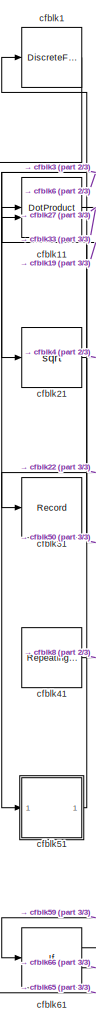
[diagram: root canvas - part 1/3, left side, full height]
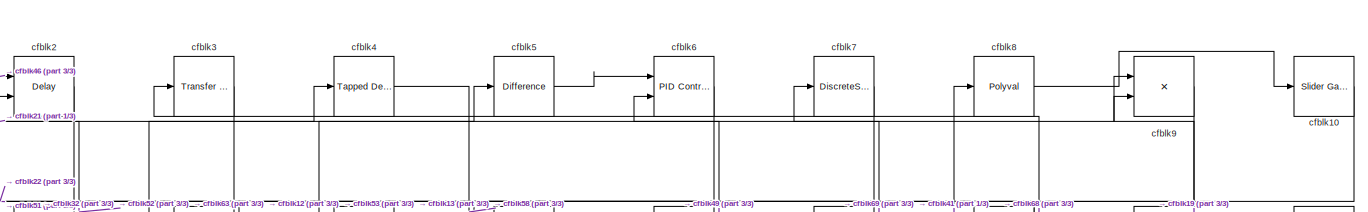
[diagram: root canvas - part 2/3, full width, top band]
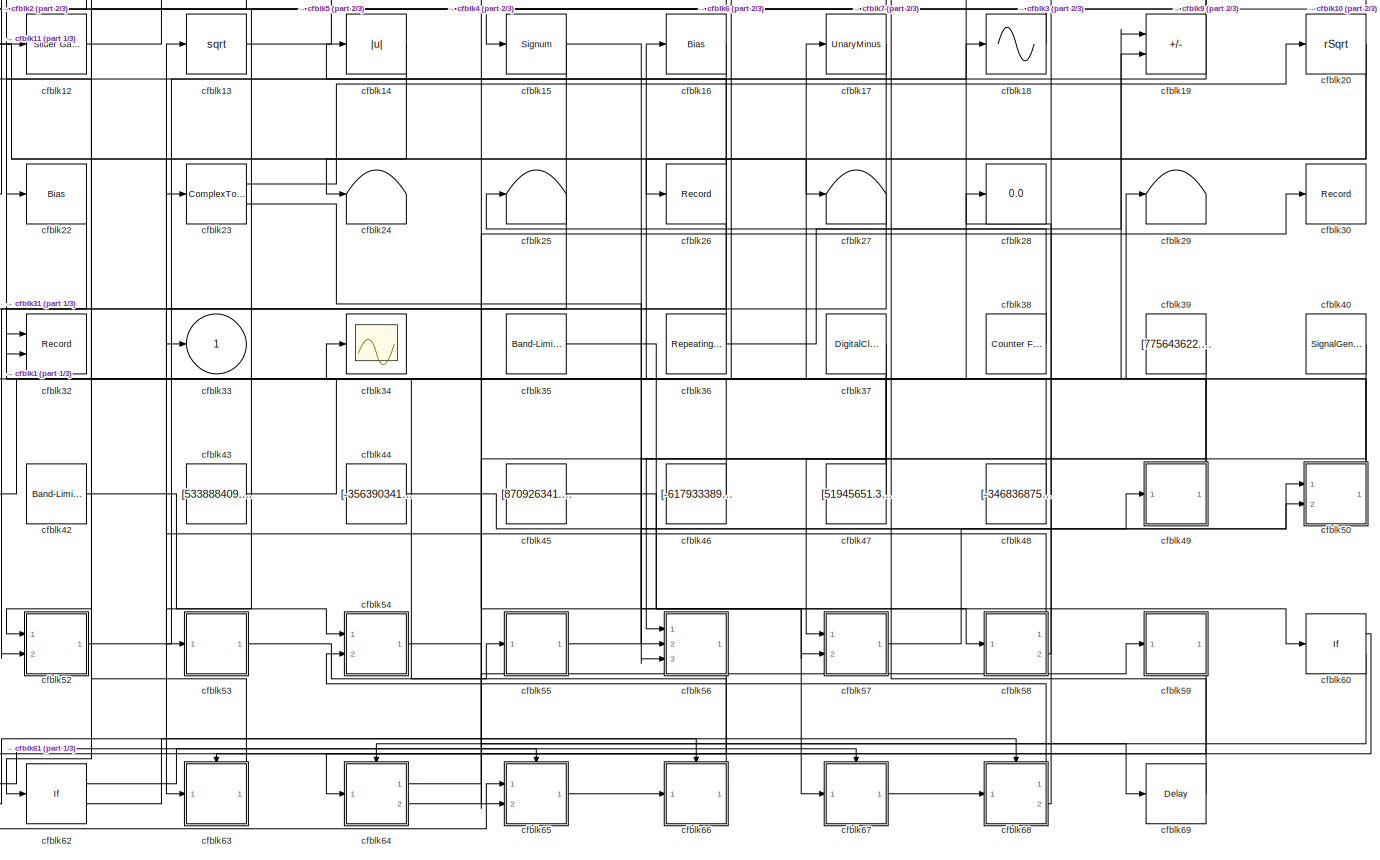
[diagram: root canvas - part 3/3, most of the canvas]
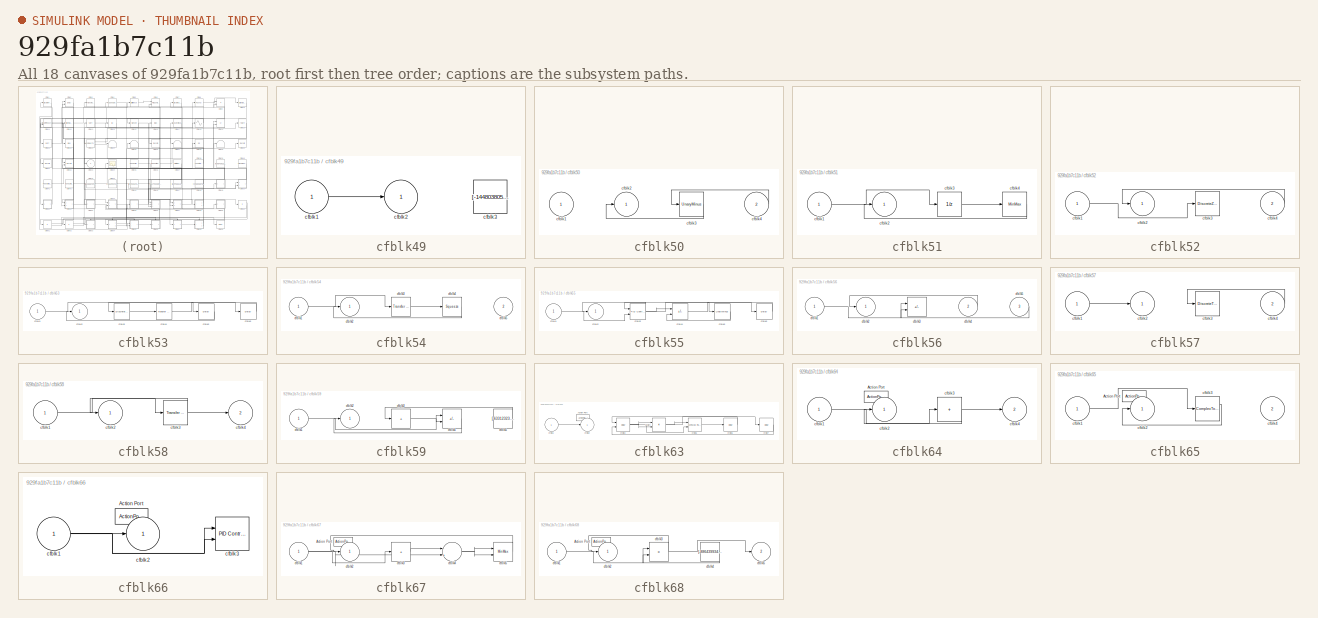
[diagram: thumbnail index - all 18 canvases of the model, root first then tree order]
MODEL slx_929fa1b7c11b
KIND model
CONFIG AbsTol = auto
CONFIG EnableMultiTasking = off
CONFIG FixedStep = auto
CONFIG MaxStep = auto
CONFIG MinStep = auto
CONFIG RelTol = 1e-3
CONFIG SampleTimeConstraint = Unconstrained
CONFIG SolverName = VariableStepAuto
CONFIG StartTime = 0.0
CONFIG StopTime = 10.0
BLOCK [DiscreteFilter] cfblk1
  InputPortMap = u0
  Ports = [1, 1]
  SampleTime = 1
BLOCK [Reference] cfblk10  REF=simulink/Math
Operations/Slider
Gain
  Ports = [1, 1]
  SourceBlock = simulink/Math\nOperations/Slider\nGain
  SourceProductBaseCode = SL
  SourceType = Slider Gain
BLOCK [DotProduct] cfblk11
  OutDataTypeStr = Inherit: Inherit via internal rule
BLOCK [Reference] cfblk12  REF=simulink/Math
Operations/Slider
Gain
  Ports = [1, 1]
  SourceBlock = simulink/Math\nOperations/Slider\nGain
  SourceProductBaseCode = SL
  SourceType = Slider Gain
BLOCK [Sqrt] cfblk13
BLOCK [Abs] cfblk14
  SaturateOnIntegerOverflow = off
BLOCK [Signum] cfblk15
BLOCK [Bias] cfblk16
  Bias = [-278197166.341707]
  SaturateOnIntegerOverflow = off
BLOCK [UnaryMinus] cfblk17
BLOCK [Sin] cfblk18
  Ports = [1, 1]
  SampleTime = 0
  TimeSource = Use external signal
BLOCK [Sum] cfblk19
  IconShape = rectangular
  Inputs = +-
  Ports = [2, 1]
BLOCK [Delay] cfblk2
  DelayLengthSource = Input port
  InputPortMap = u0,p1
  Ports = [2, 1]
  SampleTime = 1
BLOCK [Sqrt] cfblk20
  AlgorithmType = Newton-Raphson
  Operator = rSqrt
BLOCK [Sqrt] cfblk21
BLOCK [Bias] cfblk22
  Bias = [62135621.945633]
  SaturateOnIntegerOverflow = off
BLOCK [ComplexToMagnitudeAngle] cfblk23
  Ports = [1, 2]
BLOCK [Terminator] cfblk24
BLOCK [Terminator] cfblk25
BLOCK [Record] cfblk26
  FileSettingsInternal = {"entries":[{"content":{"excelSettings":{"content":{},"type":"Streamout.ExcelSettings"}},"type":"Streamout.FileSettingStorage","uuid":"be86e523-b2b8-4dfb-90bd-9b9dff0a1b6b"}],"packageUris":["http://schema.mathworks.com/mf0/streamout_blocks/R2020a"],"version":"1.0"}
  Ports = [1]
  SignalsInternal = {"entries":[{"content":{"signals":[{"content":{"blockPath":["sampleModel178/cfblk26"],"channel":[],"dimensions":[1],"domain":"sampleModel178/cfblk26","lineColor":"#77ac30","plots":[1],"port":1,"sid":[""],"signalID":6645,"signalName":"cfblk20"},"type":"RecordBlkView.Signal","uuid":"4b144584-9a43-47f2-a69c-50df024e1d48"}]},"type":"RecordBlkView.InputSignals","uuid":"c2cdda2f-7ac4-44a8-bfad-3bf684062...<+97ch>
  VisualizationBindings = {"sparklinesplugin":{"info":[{"bindingParametersList":[],"subplotID":1}]}}
BLOCK [Terminator] cfblk27
BLOCK [Display] cfblk28
  Decimation = 1
  Ports = [1]
BLOCK [Terminator] cfblk29
BLOCK [Reference] cfblk3  REF=simulink/Discrete/Transfer Fcn
First Order
  Ports = [1, 1]
  SourceBlock = simulink/Discrete/Transfer Fcn\nFirst Order
  SourceProductBaseCode = SL
  SourceType = First Order Transfer Fcn
BLOCK [Record] cfblk30
  FileSettingsInternal = {"entries":[{"content":{"excelSettings":{"content":{},"type":"Streamout.ExcelSettings"}},"type":"Streamout.FileSettingStorage","uuid":"76fbbe46-222a-41bd-be4c-6d09f312d211"}],"packageUris":["http://schema.mathworks.com/mf0/streamout_blocks/R2020a"],"version":"1.0"}
  Ports = [1]
  SignalsInternal = {"entries":[{"content":{"signals":[{"content":{"blockPath":["sampleModel178/cfblk30"],"channel":[],"dimensions":[1],"domain":"sampleModel178/cfblk30","lineColor":"#4dbeee","plots":[1],"port":1,"sid":[""],"signalID":6649,"signalName":"cfblk64:1"},"type":"RecordBlkView.Signal","uuid":"a4327d1c-5bc7-461e-8e24-29cee5ef2460"}]},"type":"RecordBlkView.InputSignals","uuid":"425877e9-1772-4313-824c-f102d4e...<+99ch>
  VisualizationBindings = {"sparklinesplugin":{"info":[{"bindingParametersList":[],"subplotID":1}]}}
BLOCK [Record] cfblk31
  FileSettingsInternal = {"entries":[{"content":{"excelSettings":{"content":{},"type":"Streamout.ExcelSettings"}},"type":"Streamout.FileSettingStorage","uuid":"43346c29-def4-4f2f-8f64-df488cf16ed7"}],"packageUris":["http://schema.mathworks.com/mf0/streamout_blocks/R2020a"],"version":"1.0"}
  Ports = [1]
  SignalsInternal = {"entries":[{"content":{"signals":[{"content":{"blockPath":["sampleModel178/cfblk31"],"channel":[],"dimensions":[1],"domain":"sampleModel178/cfblk31","lineColor":"#a2142f","plots":[1],"port":1,"sid":[""],"signalID":6653,"signalName":"cfblk22"},"type":"RecordBlkView.Signal","uuid":"eade383c-6a7d-4619-a6c9-563d680494e4"}]},"type":"RecordBlkView.InputSignals","uuid":"b48412cb-0ebc-488a-b739-6a3fe6c8a...<+97ch>
  VisualizationBindings = {"sparklinesplugin":{"info":[{"bindingParametersList":[],"subplotID":1}]}}
BLOCK [Record] cfblk32
  CompatibilityTag = XY
  FileSettingsInternal = {"entries":[{"content":{"excelSettings":{"content":{},"type":"Streamout.ExcelSettings"}},"type":"Streamout.FileSettingStorage","uuid":"be8da1fe-501e-4a30-a5ae-be33373d3ee8"}],"packageUris":["http://schema.mathworks.com/mf0/streamout_blocks/R2020a"],"version":"1.0"}
  Layout = [1 1]
  Ports = [2]
  SignalsInternal = {"entries":[{"content":{"signals":[{"content":{"blockPath":["sampleModel178/cfblk32"],"channel":[],"dimensions":[1],"domain":"sampleModel178/cfblk32","lineColor":"#a2142f","plots":[1],"port":1,"sid":[""],"signalID":6657,"signalName":"cfblk9"},"type":"RecordBlkView.Signal","uuid":"e1dc123e-5398-497d-ac3b-f2aa685ca0a2"},{"content":{"blockPath":["sampleModel178/cfblk32"],"channel":[],"dimensions":[1]...<+382ch>
  VisualizationBindings = {"xyplotplugin":{"info":[{"series":[{"bindingParametersList":[{"parameter":"X-Axis","signalID":6657,"signalName":"cfblk9"},{"parameter":"Y-Axis","signalID":6661,"signalName":"cfblk47"}],"seriesID":20501}],"subplotID":1}]}}
BLOCK [Outport] cfblk33
BLOCK [Scope] cfblk34
  Floating = off
  NumInputPorts = 1
  Ports = [1]
BLOCK [Reference] cfblk35  REF=simulink/Sources/Band-Limited
White Noise
  Ports = [0, 1]
  SourceBlock = simulink/Sources/Band-Limited\nWhite Noise
  SourceProductBaseCode = SL
  SourceType = Band-Limited White Noise.
BLOCK [Reference] cfblk36  REF=simulink/Sources/Repeating
Sequence
Stair
  Ports = [0, 1]
  SourceBlock = simulink/Sources/Repeating\nSequence\nStair
  SourceProductBaseCode = SL
  SourceType = Repeating Sequence Stair
BLOCK [DigitalClock] cfblk37
BLOCK [Reference] cfblk38  REF=simulink/Sources/Counter
Free-Running
  Ports = [0, 1]
  SourceBlock = simulink/Sources/Counter\nFree-Running
  SourceProductBaseCode = SL
  SourceType = Counter Free-Running
BLOCK [Constant] cfblk39
  SampleTime = 1
  Value = [775643622.889487]
BLOCK [Reference] cfblk4  REF=simulink/Discrete/Tapped Delay
  Ports = [1, 1]
  SourceBlock = simulink/Discrete/Tapped Delay
  SourceProductBaseCode = SL
  SourceType = Tapped Delay Line
BLOCK [SignalGenerator] cfblk40
  Amplitude = [573332357.813821]
  Ports = [0, 1]
BLOCK [Reference] cfblk41  REF=simulink/Sources/Repeating
Sequence
  Ports = [0, 1]
  SourceBlock = simulink/Sources/Repeating\nSequence
  SourceProductBaseCode = SL
  SourceType = Repeating table
BLOCK [Reference] cfblk42  REF=simulink/Sources/Band-Limited
White Noise
  Ports = [0, 1]
  SourceBlock = simulink/Sources/Band-Limited\nWhite Noise
  SourceProductBaseCode = SL
  SourceType = Band-Limited White Noise.
BLOCK [Constant] cfblk43
  SampleTime = 1
  Value = [533888409.552165]
BLOCK [Constant] cfblk44
  SampleTime = 1
  Value = [-356390341.526028]
BLOCK [Constant] cfblk45
  SampleTime = 1
  Value = [870926341.101236]
BLOCK [Constant] cfblk46
  SampleTime = 1
  Value = [-617933389.586230]
BLOCK [Constant] cfblk47
  SampleTime = 1
  Value = [51945651.349309]
BLOCK [Constant] cfblk48
  SampleTime = 1
  Value = [-346836875.340042]
BLOCK [SubSystem] cfblk49
  Ports = [1, 1]
  RequestExecContextInheritance = off
BLOCK [Inport] cfblk49/cfblk1
BLOCK [Outport] cfblk49/cfblk2
BLOCK [Constant] cfblk49/cfblk3
  SampleTime = 1
  Value = [-144803805.106900]
BLOCK [Reference] cfblk5  REF=simulink/Discrete/Difference
  Ports = [1, 1]
  SourceBlock = simulink/Discrete/Difference
  SourceProductBaseCode = SL
  SourceType = Difference
BLOCK [SubSystem] cfblk50
  Ports = [2, 1]
  RequestExecContextInheritance = off
BLOCK [Inport] cfblk50/cfblk1
BLOCK [Outport] cfblk50/cfblk2
BLOCK [UnaryMinus] cfblk50/cfblk3
BLOCK [Inport] cfblk50/cfblk4
  Port = 2
BLOCK [SubSystem] cfblk51
  Ports = [1, 1]
  RequestExecContextInheritance = off
BLOCK [Inport] cfblk51/cfblk1
BLOCK [Outport] cfblk51/cfblk2
BLOCK [UnitDelay] cfblk51/cfblk3
  HasFrameUpgradeWarning = on
BLOCK [MinMax] cfblk51/cfblk4
  Function = max
  Ports = [1, 1]
BLOCK [SubSystem] cfblk52
  Ports = [2, 1]
  RequestExecContextInheritance = off
BLOCK [Inport] cfblk52/cfblk1
BLOCK [Outport] cfblk52/cfblk2
BLOCK [DiscreteZeroPole] cfblk52/cfblk3
  Gain = 1
  Poles = [0 0.5]
BLOCK [Inport] cfblk52/cfblk4
  Port = 2
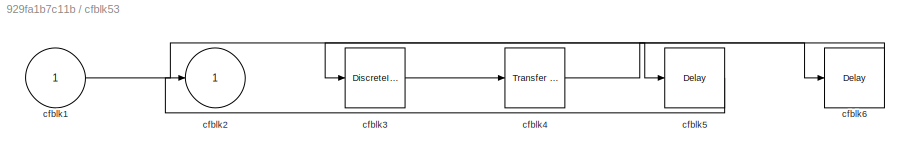
BLOCK [SubSystem] cfblk53
  Ports = [1, 1]
  RequestExecContextInheritance = off
BLOCK [Inport] cfblk53/cfblk1
BLOCK [Outport] cfblk53/cfblk2
BLOCK [DiscreteIntegrator] cfblk53/cfblk3
  ICPrevOutput = DiscIntNeverNeededParam
  ICPrevScaledInput = DiscIntNeverNeededParam
  InitialConditionSetting = Auto
  Ports = [1, 1]
BLOCK [Reference] cfblk53/cfblk4  REF=simulink/Discrete/Transfer Fcn
Lead or Lag
  Ports = [1, 1]
  SourceBlock = simulink/Discrete/Transfer Fcn\nLead or Lag
  SourceProductBaseCode = SL
  SourceType = Lead or Lag Compensator
BLOCK [Delay] cfblk53/cfblk5
  InputPortMap = u0
  Ports = [1, 1]
  SampleTime = 1
BLOCK [Delay] cfblk53/cfblk6
  InputPortMap = u0
  Ports = [1, 1]
  SampleTime = 1
BLOCK [SubSystem] cfblk54
  Ports = [2, 1]
  RequestExecContextInheritance = off
BLOCK [Inport] cfblk54/cfblk1
BLOCK [Outport] cfblk54/cfblk2
BLOCK [Reference] cfblk54/cfblk3  REF=simulink/Discrete/Transfer Fcn
Lead or Lag
  Ports = [1, 1]
  SourceBlock = simulink/Discrete/Transfer Fcn\nLead or Lag
  SourceProductBaseCode = SL
  SourceType = Lead or Lag Compensator
BLOCK [Squeeze] cfblk54/cfblk4
BLOCK [Inport] cfblk54/cfblk5
  Port = 2
BLOCK [SubSystem] cfblk55
  Ports = [1, 1]
  RequestExecContextInheritance = off
BLOCK [Inport] cfblk55/cfblk1
BLOCK [Outport] cfblk55/cfblk2
BLOCK [Reference] cfblk55/cfblk3  REF=slpidlib/PID Controller (2DOF)
  Ports = [2, 1]
  SourceBlock = slpidlib/PID Controller (2DOF)
  SourceProductBaseCode = SL
  SourceType = PID 2dof
BLOCK [Sum] cfblk55/cfblk4
  IconShape = rectangular
  Inputs = -+
  Ports = [2, 1]
BLOCK [UnaryMinus] cfblk55/cfblk5
BLOCK [Delay] cfblk55/cfblk6
  InputPortMap = u0
  Ports = [1, 1]
  SampleTime = 1
BLOCK [SubSystem] cfblk56
  Ports = [3, 1]
  RequestExecContextInheritance = off
BLOCK [Inport] cfblk56/cfblk1
BLOCK [Outport] cfblk56/cfblk2
BLOCK [Sum] cfblk56/cfblk3
  IconShape = rectangular
  Inputs = +-
  Ports = [2, 1]
BLOCK [Inport] cfblk56/cfblk4
  Port = 2
BLOCK [Inport] cfblk56/cfblk5
  Port = 3
BLOCK [SubSystem] cfblk57
  Ports = [2, 1]
  RequestExecContextInheritance = off
BLOCK [Inport] cfblk57/cfblk1
BLOCK [Outport] cfblk57/cfblk2
BLOCK [DiscreteTransferFcn] cfblk57/cfblk3
  InputPortMap = u0
  Ports = [1, 1]
  SampleTime = 1
BLOCK [Inport] cfblk57/cfblk4
  Port = 2
BLOCK [SubSystem] cfblk58
  Ports = [1, 2]
  RequestExecContextInheritance = off
BLOCK [Inport] cfblk58/cfblk1
BLOCK [Outport] cfblk58/cfblk2
BLOCK [Reference] cfblk58/cfblk3  REF=simulink/Discrete/Transfer Fcn
Lead or Lag
  Ports = [1, 1]
  SourceBlock = simulink/Discrete/Transfer Fcn\nLead or Lag
  SourceProductBaseCode = SL
  SourceType = Lead or Lag Compensator
BLOCK [Outport] cfblk58/cfblk4
  Port = 2
BLOCK [SubSystem] cfblk59
  Ports = [1, 1]
  RequestExecContextInheritance = off
BLOCK [Inport] cfblk59/cfblk1
BLOCK [Outport] cfblk59/cfblk2
BLOCK [Sum] cfblk59/cfblk3
  IconShape = rectangular
  Inputs = +
  Ports = [1, 1]
BLOCK [Sum] cfblk59/cfblk4
  IconShape = rectangular
  Inputs = -+
  Ports = [2, 1]
BLOCK [Constant] cfblk59/cfblk5
  SampleTime = 1
  Value = [-63312323.723007]
BLOCK [Reference] cfblk6  REF=slpidlib/PID Controller (2DOF)
  Ports = [2, 1]
  SourceBlock = slpidlib/PID Controller (2DOF)
  SourceProductBaseCode = SL
  SourceType = PID 2dof
BLOCK [If] cfblk60
  IfExpression = u1 >= 0
  Ports = [1, 2]
  SampleTime = 1
BLOCK [If] cfblk61
  IfExpression = u1 >= 0
  Ports = [1, 2]
  SampleTime = 1
BLOCK [If] cfblk62
  IfExpression = u1 >= 0
  Ports = [1, 2]
  SampleTime = 1
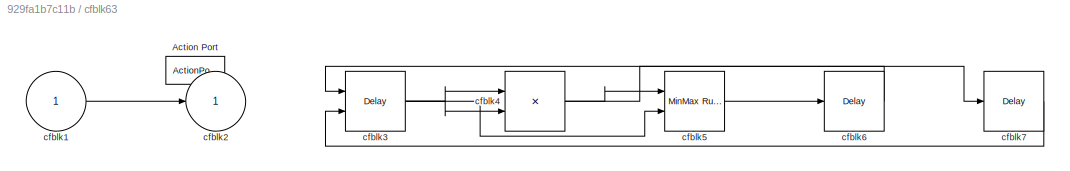
BLOCK [SubSystem] cfblk63
  Ports = [1, 1, 0, 0, 0, 0, 0, 1]
  RequestExecContextInheritance = off
  TreatAsAtomicUnit = on
BLOCK [ActionPort] cfblk63/Action Port
  ActionPortLabel = if(u1 >= 0)
BLOCK [Inport] cfblk63/cfblk1
BLOCK [Outport] cfblk63/cfblk2
BLOCK [Delay] cfblk63/cfblk3
  DelayLengthSource = Input port
  InputPortMap = u0,p1
  Ports = [2, 1]
BLOCK [Product] cfblk63/cfblk4
  Inputs = **
  Ports = [2, 1]
BLOCK [Reference] cfblk63/cfblk5  REF=simulink/Math
Operations/MinMax
Running
Resettable
  Ports = [2, 1]
  SourceBlock = simulink/Math\nOperations/MinMax\nRunning\nResettable
  SourceProductBaseCode = SL
  SourceType = MinMax Running Resettable
BLOCK [Delay] cfblk63/cfblk6
  InputPortMap = u0
  Ports = [1, 1]
BLOCK [Delay] cfblk63/cfblk7
  InputPortMap = u0
  Ports = [1, 1]
BLOCK [SubSystem] cfblk64
  Ports = [1, 2, 0, 0, 0, 0, 0, 1]
  RequestExecContextInheritance = off
  TreatAsAtomicUnit = on
BLOCK [ActionPort] cfblk64/Action Port
  ActionPortLabel = else
BLOCK [Inport] cfblk64/cfblk1
BLOCK [Outport] cfblk64/cfblk2
BLOCK [Sum] cfblk64/cfblk3
  IconShape = rectangular
  Inputs = +
  Ports = [1, 1]
BLOCK [Outport] cfblk64/cfblk4
  Port = 2
BLOCK [SubSystem] cfblk65
  Ports = [2, 1, 0, 0, 0, 0, 0, 1]
  RequestExecContextInheritance = off
  TreatAsAtomicUnit = on
BLOCK [ActionPort] cfblk65/Action Port
  ActionPortLabel = if(u1 >= 0)
BLOCK [Inport] cfblk65/cfblk1
BLOCK [Outport] cfblk65/cfblk2
BLOCK [ComplexToMagnitudeAngle] cfblk65/cfblk3
  Ports = [1, 2]
BLOCK [Inport] cfblk65/cfblk4
  Port = 2
BLOCK [SubSystem] cfblk66
  Ports = [1, 1, 0, 0, 0, 0, 0, 1]
  RequestExecContextInheritance = off
  TreatAsAtomicUnit = on
BLOCK [ActionPort] cfblk66/Action Port
  ActionPortLabel = else
BLOCK [Inport] cfblk66/cfblk1
BLOCK [Outport] cfblk66/cfblk2
BLOCK [Reference] cfblk66/cfblk3  REF=slpidlib/PID Controller (2DOF)
  Ports = [2, 1]
  SourceBlock = slpidlib/PID Controller (2DOF)
  SourceProductBaseCode = SL
  SourceType = PID 2dof
BLOCK [SubSystem] cfblk67
  Ports = [1, 1, 0, 0, 0, 0, 0, 1]
  RequestExecContextInheritance = off
  TreatAsAtomicUnit = on
BLOCK [ActionPort] cfblk67/Action Port
  ActionPortLabel = if(u1 >= 0)
BLOCK [Inport] cfblk67/cfblk1
BLOCK [Outport] cfblk67/cfblk2
BLOCK [Sum] cfblk67/cfblk3
  IconShape = rectangular
  Inputs = +
  Ports = [1, 1]
BLOCK [Sum] cfblk67/cfblk4
  Inputs = |++
  Ports = [2, 1]
BLOCK [MinMax] cfblk67/cfblk5
  Function = max
  Inputs = 2
  Ports = [2, 1]
BLOCK [SubSystem] cfblk68
  Ports = [1, 2, 0, 0, 0, 0, 0, 1]
  RequestExecContextInheritance = off
  TreatAsAtomicUnit = on
BLOCK [ActionPort] cfblk68/Action Port
  ActionPortLabel = else
BLOCK [Inport] cfblk68/cfblk1
BLOCK [Outport] cfblk68/cfblk2
BLOCK [Product] cfblk68/cfblk3
  Inputs = **
  Ports = [2, 1]
BLOCK [Constant] cfblk68/cfblk4
  SampleTime = 1
  Value = [-886439934.986185]
BLOCK [Outport] cfblk68/cfblk5
  Port = 2
BLOCK [Delay] cfblk69
  InputPortMap = u0
  Ports = [1, 1]
  SampleTime = 1
BLOCK [DiscreteStateSpace] cfblk7
BLOCK [Polyval] cfblk8
  Coefs = [ +2.081618890e-019, -1.441693666e-014, +4.719686976e-010, -8.536869453e-006, +1.621573104e-001, -8.087801117e+001 ]
BLOCK [Product] cfblk9
  Inputs = **
  Ports = [2, 1]
LINE cfblk10:1 -> cfblk52:1
NET cfblk11:1 -> cfblk27:1, cfblk33:1
LINE cfblk12:1 -> cfblk9:2
LINE cfblk13:1 -> cfblk5:1
LINE cfblk14:1 -> cfblk23:1
NET cfblk15:1 -> cfblk60:1, cfblk62:1
LINE cfblk16:1 -> cfblk63:1
LINE cfblk17:1 -> cfblk52:2
LINE cfblk18:1 -> cfblk15:1
NET cfblk19:1 -> cfblk11:2, cfblk9:1
LINE cfblk1:1 -> cfblk65:1
NET cfblk20:1 -> cfblk24:1, cfblk26:1
LINE cfblk21:1 -> cfblk4:1
LINE cfblk22:1 -> cfblk31:1
LINE cfblk23:1 -> cfblk20:1
LINE cfblk23:2 -> cfblk56:2
LINE cfblk2:1 -> cfblk22:1
LINE cfblk35:1 -> cfblk57:2
NET cfblk36:1 -> cfblk14:1, cfblk19:1
NET cfblk37:1 -> cfblk57:1, cfblk65:2
LINE cfblk38:1 -> cfblk25:1
LINE cfblk39:1 -> cfblk56:3
LINE cfblk3:1 -> cfblk21:1
LINE cfblk40:1 -> cfblk56:1
LINE cfblk41:1 -> cfblk8:1
LINE cfblk42:1 -> cfblk54:1
LINE cfblk43:1 -> cfblk19:2
LINE cfblk44:1 -> cfblk49:1
LINE cfblk45:1 -> cfblk67:1
LINE cfblk46:1 -> cfblk2:1
NET cfblk47:1 -> cfblk12:1, cfblk32:2
LINE cfblk48:1 -> cfblk16:1
LINE cfblk49/cfblk1:1 -> cfblk49/cfblk2:1
NET cfblk49:1 -> cfblk29:1, cfblk6:2
LINE cfblk4:1 -> cfblk58:1
LINE cfblk50/cfblk3:1 -> cfblk50/cfblk2:1
LINE cfblk50/cfblk4:1 -> cfblk50/cfblk3:1
NET cfblk50:1 -> cfblk17:1, cfblk1:1
LINE cfblk51/cfblk1:1 -> cfblk51/cfblk3:1
LINE cfblk51/cfblk3:1 -> cfblk51/cfblk4:1
LINE cfblk51/cfblk4:1 -> cfblk51/cfblk2:1
LINE cfblk51:1 -> cfblk11:1
LINE cfblk52/cfblk1:1 -> cfblk52/cfblk3:1
LINE cfblk52/cfblk4:1 -> cfblk52/cfblk2:1
LINE cfblk52:1 -> cfblk18:1
LINE cfblk53/cfblk1:1 -> cfblk53/cfblk5:1
LINE cfblk53/cfblk3:1 -> cfblk53/cfblk4:1
LINE cfblk53/cfblk4:1 -> cfblk53/cfblk6:1
LINE cfblk53/cfblk5:1 -> cfblk53/cfblk2:1
LINE cfblk53/cfblk6:1 -> cfblk53/cfblk3:1
LINE cfblk53:1 -> cfblk55:1
LINE cfblk54/cfblk1:1 -> cfblk54/cfblk3:1
LINE cfblk54/cfblk3:1 -> cfblk54/cfblk4:1
LINE cfblk54/cfblk4:1 -> cfblk54/cfblk2:1
LINE cfblk54:1 -> cfblk69:1
LINE cfblk55/cfblk1:1 -> cfblk55/cfblk3:2
NET cfblk55/cfblk3:1 -> cfblk55/cfblk2:1, cfblk55/cfblk4:1, cfblk55/cfblk5:1
LINE cfblk55/cfblk4:1 -> cfblk55/cfblk6:1
LINE cfblk55/cfblk5:1 -> cfblk55/cfblk4:2
LINE cfblk55/cfblk6:1 -> cfblk55/cfblk3:1
LINE cfblk55:1 -> cfblk50:2
LINE cfblk56/cfblk1:1 -> cfblk56/cfblk3:2
LINE cfblk56/cfblk4:1 -> cfblk56/cfblk2:1
LINE cfblk56/cfblk5:1 -> cfblk56/cfblk3:1
LINE cfblk56:1 -> cfblk64:1
LINE cfblk57/cfblk1:1 -> cfblk57/cfblk2:1
LINE cfblk57/cfblk4:1 -> cfblk57/cfblk3:1
LINE cfblk57:1 -> cfblk50:1
LINE cfblk58/cfblk1:1 -> cfblk58/cfblk3:1
NET cfblk58/cfblk3:1 -> cfblk58/cfblk2:1, cfblk58/cfblk4:1
LINE cfblk58:1 -> cfblk13:1
LINE cfblk58:2 -> cfblk28:1
LINE cfblk59/cfblk1:1 -> cfblk59/cfblk4:1
LINE cfblk59/cfblk3:1 -> cfblk59/cfblk4:2
LINE cfblk59/cfblk4:1 -> cfblk59/cfblk2:1
LINE cfblk59/cfblk5:1 -> cfblk59/cfblk3:1
LINE cfblk59:1 -> cfblk61:1
LINE cfblk5:1 -> cfblk6:1
LINE cfblk60:1 -> cfblk63:ifaction
LINE cfblk60:2 -> cfblk64:ifaction
LINE cfblk61:1 -> cfblk65:ifaction
LINE cfblk61:2 -> cfblk66:ifaction
LINE cfblk62:1 -> cfblk67:ifaction
LINE cfblk62:2 -> cfblk68:ifaction
LINE cfblk63/cfblk1:1 -> cfblk63/cfblk2:1
NET cfblk63/cfblk3:1 -> cfblk63/cfblk4:1, cfblk63/cfblk4:2, cfblk63/cfblk5:2
NET cfblk63/cfblk4:1 -> cfblk63/cfblk5:1, cfblk63/cfblk7:1
LINE cfblk63/cfblk5:1 -> cfblk63/cfblk6:1
LINE cfblk63/cfblk6:1 -> cfblk63/cfblk3:1
LINE cfblk63/cfblk7:1 -> cfblk63/cfblk3:2
LINE cfblk63:1 -> cfblk2:2
LINE cfblk64/cfblk1:1 -> cfblk64/cfblk3:1
NET cfblk64/cfblk3:1 -> cfblk64/cfblk2:1, cfblk64/cfblk4:1
LINE cfblk64:1 -> cfblk30:1
LINE cfblk64:2 -> cfblk59:1
LINE cfblk65/cfblk1:1 -> cfblk65/cfblk3:1
LINE cfblk65/cfblk3:1 -> cfblk65/cfblk2:1
LINE cfblk65:1 -> cfblk66:1
NET cfblk66/cfblk1:1 -> cfblk66/cfblk2:1, cfblk66/cfblk3:1, cfblk66/cfblk3:2
LINE cfblk66:1 -> cfblk34:1
NET cfblk67/cfblk1:1 -> cfblk67/cfblk3:1, cfblk67/cfblk4:2
LINE cfblk67/cfblk3:1 -> cfblk67/cfblk4:1
NET cfblk67/cfblk4:1 -> cfblk67/cfblk5:1, cfblk67/cfblk5:2
LINE cfblk67/cfblk5:1 -> cfblk67/cfblk2:1
LINE cfblk67:1 -> cfblk68:1
LINE cfblk68/cfblk1:1 -> cfblk68/cfblk3:1
NET cfblk68/cfblk3:1 -> cfblk68/cfblk2:1, cfblk68/cfblk5:1
LINE cfblk68/cfblk4:1 -> cfblk68/cfblk3:2
LINE cfblk68:1 -> cfblk54:2
LINE cfblk68:2 -> cfblk3:1
LINE cfblk69:1 -> cfblk7:1
LINE cfblk6:1 -> cfblk51:1
LINE cfblk7:1 -> cfblk53:1
LINE cfblk8:1 -> cfblk10:1
LINE cfblk9:1 -> cfblk32:1
note: NET lines group one-source signal fan-out (src -> all destinations, sorted); 1:1 wires keep LINE
